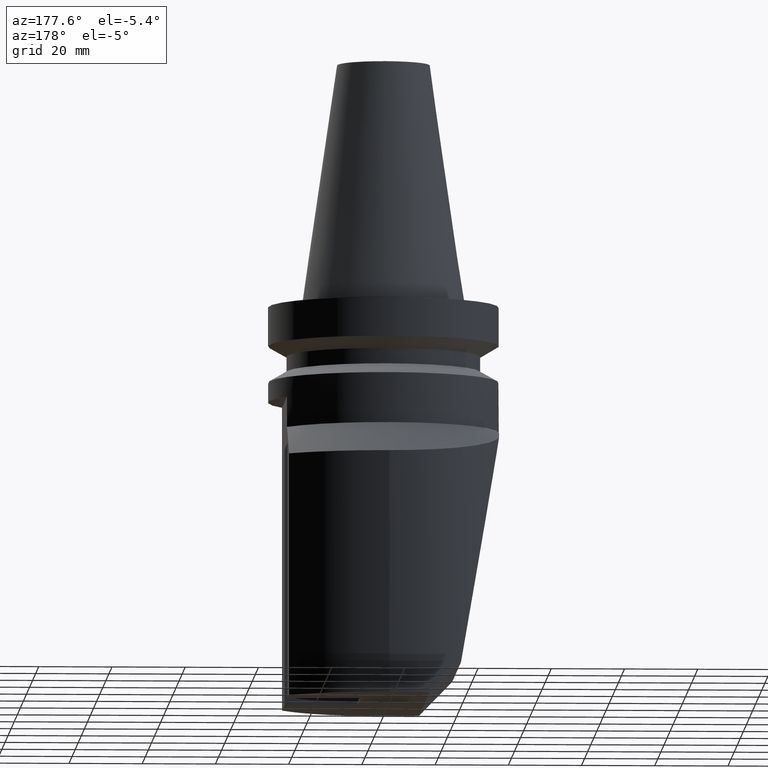
[diagram: clean part render]
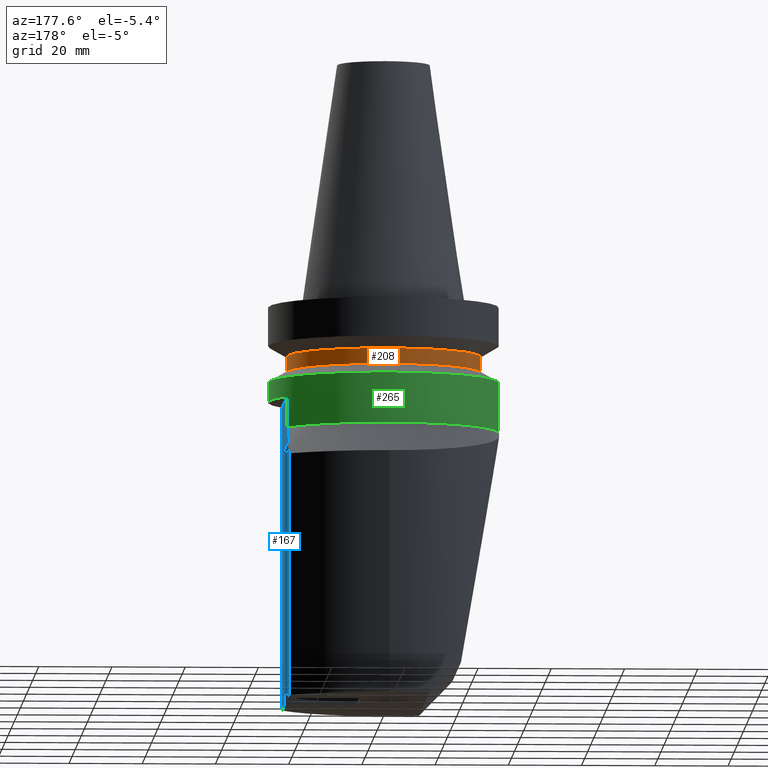
[diagram: same view with three faces highlighted in distinct colors, each labeled with its STEP entity id]
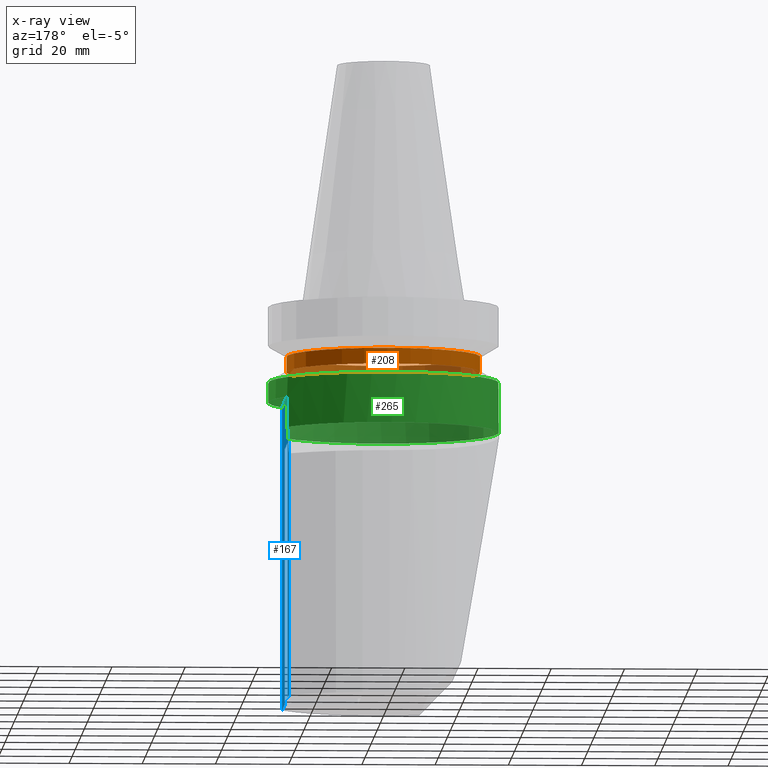
[diagram: x-ray of the same camera — body ghosted, the three highlighted faces saturated]
A machine part, auxiliary view with three faces highlighted in distinct colors.
The next image is the same camera in x-ray (body ghosted, the three faces saturated) — at least one of them is partly hidden behind the body in this view.
Their STEP definitions:

[orange] entity #208 — the highlighted cylindrical surface (bore or boss wall) has radius 26.5 mm, axis along (-0, 0, 1).
#140=EDGE_CURVE('Unnamed[1]',#352,#352,#353,.T.);
#194=EDGE_CURVE('Unnamed[1]',#425,#425,#426,.T.);
#208=ADVANCED_FACE('Unnamed[1]',(#442,#443),#444,.T.);
#352=VERTEX_POINT('',#637);
#353=CIRCLE('',#638,26.5000000000001);
#425=VERTEX_POINT('',#829);
#426=CIRCLE('',#830,26.5000000000001);
#442=FACE_BOUND('',#879,.T.);
#443=FACE_BOUND('',#880,.T.);
#444=CYLINDRICAL_SURFACE('',#881,26.5000000000001);
#637=CARTESIAN_POINT('',(8.87057683292944E-016,-26.5000000000001,-14.486751345948));
#638=AXIS2_PLACEMENT_3D('',#1067,#1068,#1069);
#829=CARTESIAN_POINT('',(1.14585600329165E-015,-26.5000000000001,-18.7132486540518));
#830=AXIS2_PLACEMENT_3D('',#1157,#1158,#1159);
#879=EDGE_LOOP('',(#1174));
#880=EDGE_LOOP('',(#1175));
#881=AXIS2_PLACEMENT_3D('',#1176,#1177,#1178);
#1067=CARTESIAN_POINT('',(8.87057683292945E-016,3.98382006214137E-015,-14.4867513459481));
#1068=DIRECTION('',(6.12323399573677E-017,-2.0159339262104E-016,-1.0));
#1069=DIRECTION('',(-7.51688241936162E-033,-1.0,2.0159339262104E-016));
#1157=CARTESIAN_POINT('',(1.14585600329165E-015,3.13178613089705E-015,-18.7132486540518));
#1158=DIRECTION('',(6.12323399573677E-017,-2.0159339262104E-016,-1.0));
#1159=DIRECTION('',(-7.51688241936162E-033,-1.0,2.0159339262104E-016));
#1174=ORIENTED_EDGE('',*,*,#194,.F.);
#1175=ORIENTED_EDGE('',*,*,#140,.T.);
#1176=CARTESIAN_POINT('',(1.0164568432923E-015,3.55780309651921E-015,-16.5999999999999));
#1177=DIRECTION('',(-6.12323399573677E-017,2.0159339262104E-016,1.0));
#1178=DIRECTION('',(-7.51688241936162E-033,-1.0,2.0159339262104E-016));

[blue] entity #167 — the highlighted planar face has unit normal (-1, -0, -0).
#101=EDGE_CURVE('Unnamed[1]',#291,#292,#293,.T.);
#128=EDGE_CURVE('Unnamed[1]',#300,#336,#337,.T.);
#134=EDGE_CURVE('Unnamed[1]',#300,#299,#345,.T.);
#136=EDGE_CURVE('Unnamed[1]',#347,#327,#348,.T.);
#167=ADVANCED_FACE('Unnamed[1]',(#388),#389,.F.);
#176=EDGE_CURVE('Unnamed[1]',#336,#401,#402,.T.);
#192=EDGE_CURVE('Unnamed[1]',#309,#292,#423,.T.);
#196=EDGE_CURVE('Unnamed[1]',#299,#375,#428,.T.);
#222=EDGE_CURVE('Unnamed[1]',#291,#464,#465,.T.);
#224=EDGE_CURVE('Unnamed[1]',#401,#430,#467,.T.);
#232=EDGE_CURVE('Unnamed[1]',#309,#375,#476,.T.);
#234=EDGE_CURVE('Unnamed[1]',#453,#430,#478,.T.);
#236=EDGE_CURVE('Unnamed[1]',#464,#347,#480,.T.);
#257=EDGE_CURVE('Unnamed[1]',#453,#327,#507,.T.);
#291=VERTEX_POINT('',#538);
#292=VERTEX_POINT('',#539);
#293=LINE('',#540,#541);
#299=VERTEX_POINT('',#549);
#300=VERTEX_POINT('',#550);
#309=VERTEX_POINT('',#561);
#327=VERTEX_POINT('',#589);
#336=VERTEX_POINT('',#601);
#337=LINE('',#602,#603);
#345=LINE('',#624,#625);
#347=VERTEX_POINT('',#628);
#348=LINE('',#629,#630);
#375=VERTEX_POINT('',#671);
#388=FACE_OUTER_BOUND('',#714,.T.);
#389=PLANE('',#715);
#401=VERTEX_POINT('',#785);
#402=(B_SPLINE_CURVE(3,(#787,#788,#789,#790,#791,#792,#793),.UNSPECIFIED.,.F.,.F.)B_SPLINE_CURVE_WITH_KNOTS((4,3,4),(0.0,10.5278552512868,16.0041699790328),.UNSPECIFIED.)RATIONAL_B_SPLINE_CURVE((1.0,1.00788251809051,1.01050813068556,1.00787683778514,1.00787683778514,1.00787683778514,1.00787683778514))BOUNDED_CURVE()REPRESENTATION_ITEM('')GEOMETRIC_REPRESENTATION_ITEM()CURVE());
#423=LINE('',#825,#826);
#428=LINE('',#833,#834);
#430=VERTEX_POINT('',#837);
#453=VERTEX_POINT('',#893);
#464=VERTEX_POINT('',#907);
#465=LINE('',#908,#909);
#467=(B_SPLINE_CURVE(3,(#913,#914,#915,#916,#917,#918,#919),.UNSPECIFIED.,.F.,.F.)B_SPLINE_CURVE_WITH_KNOTS((4,3,4),(0.0,10.5278552512868,16.0041699790328),.UNSPECIFIED.)RATIONAL_B_SPLINE_CURVE((1.0,1.00788251809051,1.01050813068556,1.00787683778514,1.00787683778514,1.00787683778514,1.00787683778514))BOUNDED_CURVE()REPRESENTATION_ITEM('')GEOMETRIC_REPRESENTATION_ITEM()CURVE());
#476=LINE('',#939,#940);
#478=LINE('',#943,#944);
#480=LINE('',#947,#948);
#507=LINE('',#992,#993);
#538=CARTESIAN_POINT('',(27.0000000000001,-0.0034281572378115,-110.0));
#539=CARTESIAN_POINT('',(27.0000000000002,-16.2284088968249,-109.999999999997));
#540=CARTESIAN_POINT('',(27.0000000000001,-7.11272217673018,-109.999999999999));
#541=VECTOR('',#1013,1.0);
#549=CARTESIAN_POINT('',(27.0000000000001,-16.2249807395879,-26.9999999999999));
#550=CARTESIAN_POINT('',(27.0,16.2249807395881,-26.9999999999998));
#561=CARTESIAN_POINT('',(26.9999999999996,-16.2284088968269,-35.3017659080035));
#589=CARTESIAN_POINT('',(26.9999999999999,19.9965718427622,-110.000000000002));
#601=CARTESIAN_POINT('',(27.0,16.2249807395876,-35.3000000000013));
#602=CARTESIAN_POINT('',(27.0,16.2249807395879,-28.4500000000006));
#603=VECTOR('',#1062,1.0);
#624=CARTESIAN_POINT('',(27.0,2.88727782326311,-26.9999999999998));
#625=VECTOR('',#1064,1.0);
#628=CARTESIAN_POINT('',(26.9999999999999,19.9965718427622,-39.9999999999999));
#629=CARTESIAN_POINT('',(26.9999999999999,19.9965718427622,-272.996571842762));
#630=VECTOR('',#1065,1.0);
#671=CARTESIAN_POINT('',(27.0000000000001,-16.2249807395873,-35.3000000000013));
#714=EDGE_LOOP('',(#1105,#1106,#1107,#1108,#1109,#1110,#1111,#1112,#1113,#1114,#1115,#1116,#1117));
#715=AXIS2_PLACEMENT_3D('',#1118,#1119,#1120);
#785=CARTESIAN_POINT('',(26.9999999999999,21.8441877516248,-38.5299372088164));
#787=CARTESIAN_POINT('',(27.0,16.2249807395876,-35.3000000000013));
#788=CARTESIAN_POINT('',(27.0,18.8531391872342,-36.6537085775775));
#789=CARTESIAN_POINT('',(26.9999999999999,21.6689430550411,-38.3469932147022));
#790=CARTESIAN_POINT('',(26.9999999999999,24.7149860313792,-40.40369564035));
#791=CARTESIAN_POINT('',(26.9999999999999,26.3035944812953,-41.4763314756705));
#792=CARTESIAN_POINT('',(26.9999999999998,27.9079574070795,-42.6160483346389));
#793=CARTESIAN_POINT('',(26.9999999999998,29.5092809695102,-43.7974707117538));
#825=CARTESIAN_POINT('',(27.0000000000001,-16.2284088968249,-76.85));
#826=VECTOR('',#1156,1.0);
#833=CARTESIAN_POINT('',(27.0000000000001,-16.2249807395875,-76.85));
#834=VECTOR('',#1160,1.0);
#837=CARTESIAN_POINT('',(26.9999999999998,29.5092809695102,-43.7974707117538));
#893=CARTESIAN_POINT('',(26.9999999999998,29.5092809695102,-110.0));
#907=CARTESIAN_POINT('',(27.0000000000001,-0.00342815723782013,-39.9999999999999));
#908=CARTESIAN_POINT('',(27.0000000000001,-0.00342815723779147,-272.996571842762));
#909=VECTOR('',#1203,1.0);
#913=CARTESIAN_POINT('',(27.0,16.2249807395876,-35.3000000000013));
#914=CARTESIAN_POINT('',(27.0,18.8531391872342,-36.6537085775775));
#915=CARTESIAN_POINT('',(26.9999999999999,21.6689430550411,-38.3469932147022));
#916=CARTESIAN_POINT('',(26.9999999999999,24.7149860313792,-40.40369564035));
#917=CARTESIAN_POINT('',(26.9999999999999,26.3035944812953,-41.4763314756705));
#918=CARTESIAN_POINT('',(26.9999999999998,27.9079574070795,-42.6160483346389));
#919=CARTESIAN_POINT('',(26.9999999999998,29.5092809695102,-43.7974707117538));
#939=CARTESIAN_POINT('',(27.0000000000001,-16.2269952441868,-35.301037862504));
#940=VECTOR('',#1211,1.0);
#943=CARTESIAN_POINT('',(26.9999999999998,29.5092809695102,-272.996571842762));
#944=VECTOR('',#1212,1.0);
#947=CARTESIAN_POINT('',(27.0,8.04161003166451,-39.9999999999989));
#948=VECTOR('',#1213,1.0);
#992=CARTESIAN_POINT('',(27.0000000000001,-7.11272217673018,-109.999999999999));
#993=VECTOR('',#1258,1.0);
#1013=DIRECTION('',(7.50292069739194E-015,-1.0,7.73266935179359E-014));
#1062=DIRECTION('',(6.12323399573677E-017,-2.0159339262104E-016,-1.0));
#1064=DIRECTION('',(7.50292069739195E-015,-1.0,-3.28448495793784E-015));
#1065=DIRECTION('',(6.12323399573677E-017,1.22464679914735E-016,-1.0));
#1105=ORIENTED_EDGE('',*,*,#134,.T.);
#1106=ORIENTED_EDGE('',*,*,#196,.T.);
#1107=ORIENTED_EDGE('',*,*,#232,.F.);
#1108=ORIENTED_EDGE('',*,*,#192,.T.);
#1109=ORIENTED_EDGE('',*,*,#101,.F.);
#1110=ORIENTED_EDGE('',*,*,#222,.T.);
#1111=ORIENTED_EDGE('',*,*,#236,.T.);
#1112=ORIENTED_EDGE('',*,*,#136,.T.);
#1113=ORIENTED_EDGE('',*,*,#257,.F.);
#1114=ORIENTED_EDGE('',*,*,#234,.T.);
#1115=ORIENTED_EDGE('',*,*,#224,.F.);
#1116=ORIENTED_EDGE('',*,*,#176,.F.);
#1117=ORIENTED_EDGE('',*,*,#128,.F.);
#1118=CARTESIAN_POINT('',(27.0,5.77455564652693,-272.996571842762));
#1119=DIRECTION('',(-1.0,-7.50292069739195E-015,-6.12323399573686E-017));
#1120=DIRECTION('',(-7.50292069739195E-015,1.0,0.0));
#1156=DIRECTION('',(6.12323399573676E-017,1.22464679914735E-016,-1.0));
#1160=DIRECTION('',(6.12323399573677E-017,-2.0159339262104E-016,-1.0));
#1203=DIRECTION('',(-6.12323399573677E-017,-1.22464679914735E-016,1.0));
#1211=DIRECTION('',(3.94693828708642E-013,0.888983886922819,0.457938477081361));
#1212=DIRECTION('',(-6.12323399573676E-017,-1.22464679914735E-016,1.0));
#1213=DIRECTION('',(-7.50292069739195E-015,1.0,1.22464679914735E-016));
#1258=DIRECTION('',(7.50292069739194E-015,-1.0,7.73266935179359E-014));

[green] entity #265 — the highlighted cylindrical surface (bore or boss wall) has radius 31.5 mm, axis along (-0, 0, 1).
#106=EDGE_CURVE('Unnamed[1]',#299,#300,#301,.T.);
#113=EDGE_CURVE('Unnamed[1]',#312,#313,#314,.T.);
#128=EDGE_CURVE('Unnamed[1]',#300,#336,#337,.T.);
#156=EDGE_CURVE('Unnamed[1]',#312,#336,#373,.T.);
#158=EDGE_CURVE('Unnamed[1]',#375,#313,#376,.T.);
#174=EDGE_CURVE('Unnamed[1]',#398,#398,#399,.T.);
#196=EDGE_CURVE('Unnamed[1]',#299,#375,#428,.T.);
#265=ADVANCED_FACE('Unnamed[1]',(#516,#517),#518,.T.);
#299=VERTEX_POINT('',#549);
#300=VERTEX_POINT('',#550);
#301=CIRCLE('',#551,31.5000000000001);
#312=VERTEX_POINT('',#570);
#313=VERTEX_POINT('',#571);
#314=ELLIPSE('',#572,181.401270219024,31.4999999999999);
#336=VERTEX_POINT('',#601);
#337=LINE('',#602,#603);
#373=CIRCLE('',#668,31.4999999999998);
#375=VERTEX_POINT('',#671);
#376=CIRCLE('',#672,31.4999999999998);
#398=VERTEX_POINT('',#781);
#399=CIRCLE('',#782,31.5000000000001);
#428=LINE('',#833,#834);
#516=FACE_BOUND('',#1005,.T.);
#517=FACE_BOUND('',#1006,.T.);
#518=CYLINDRICAL_SURFACE('',#1007,31.4999999999999);
#549=CARTESIAN_POINT('',(27.0000000000001,-16.2249807395879,-26.9999999999999));
#550=CARTESIAN_POINT('',(27.0,16.2249807395881,-26.9999999999998));
#551=AXIS2_PLACEMENT_3D('',#1019,#1020,#1021);
#570=CARTESIAN_POINT('',(-31.4471019057867,1.82476895169037,-35.3000000000013));
#571=CARTESIAN_POINT('',(-31.4471019057867,-1.82476895169037,-35.3000000000013));
#572=AXIS2_PLACEMENT_3D('',#1028,#1029,#1030);
#601=CARTESIAN_POINT('',(27.0,16.2249807395876,-35.3000000000013));
#602=CARTESIAN_POINT('',(27.0,16.2249807395879,-28.4500000000006));
#603=VECTOR('',#1062,1.0);
#668=AXIS2_PLACEMENT_3D('',#1094,#1095,#1096);
#671=CARTESIAN_POINT('',(27.0000000000001,-16.2249807395873,-35.3000000000013));
#672=AXIS2_PLACEMENT_3D('',#1097,#1098,#1099);
#781=CARTESIAN_POINT('',(27.0000000000001,-16.2249807395879,-21.5999999999999));
#782=AXIS2_PLACEMENT_3D('',#1127,#1128,#1129);
#833=CARTESIAN_POINT('',(27.0000000000001,-16.2249807395875,-76.85));
#834=VECTOR('',#1160,1.0);
#1005=EDGE_LOOP('',(#1269,#1270,#1271,#1272,#1273,#1274));
#1006=EDGE_LOOP('',(#1275));
#1007=AXIS2_PLACEMENT_3D('',#1276,#1277,#1278);
#1019=CARTESIAN_POINT('',(-4.84153729601279E-014,2.03134045274165E-014,-26.9999999999999));
#1020=DIRECTION('',(-6.12323399573677E-017,2.0159339262104E-016,1.0));
#1021=DIRECTION('',(-7.51688241936162E-033,-1.0,2.0159339262104E-016));
#1028=CARTESIAN_POINT('',(1.30820063742531E-014,-3.61652430173003E-014,-213.645377317954));
#1029=DIRECTION('',(0.984807753012208,-2.12657684957577E-017,0.173648177666931));
#1030=DIRECTION('',(-0.173648177666931,1.98530736009235E-016,0.984807753012208));
#1062=DIRECTION('',(6.12323399573677E-017,-2.0159339262104E-016,-1.0));
#1094=CARTESIAN_POINT('',(2.16150160049516E-015,-2.11993345494519E-016,-35.3000000000013));
#1095=DIRECTION('',(6.12323399573677E-017,-2.0159339262104E-016,-1.0));
#1096=DIRECTION('',(-7.51688241936162E-033,-1.0,2.0159339262104E-016));
#1097=CARTESIAN_POINT('',(2.16150160049516E-015,-2.11993345494519E-016,-35.3000000000013));
#1098=DIRECTION('',(6.12323399573677E-017,-2.0159339262104E-016,-1.0));
#1099=DIRECTION('',(-7.51688241936162E-033,-1.0,2.0159339262104E-016));
#1127=CARTESIAN_POINT('',(1.32261854307913E-015,2.54983613341402E-015,-21.5999999999999));
#1128=DIRECTION('',(6.12323399573677E-017,-2.0159339262104E-016,-1.0));
#1129=DIRECTION('',(-7.51688241936162E-033,-1.0,2.0159339262104E-016));
#1160=DIRECTION('',(6.12323399573677E-017,-2.0159339262104E-016,-1.0));
#1269=ORIENTED_EDGE('',*,*,#106,.T.);
#1270=ORIENTED_EDGE('',*,*,#128,.T.);
#1271=ORIENTED_EDGE('',*,*,#156,.F.);
#1272=ORIENTED_EDGE('',*,*,#113,.T.);
#1273=ORIENTED_EDGE('',*,*,#158,.F.);
#1274=ORIENTED_EDGE('',*,*,#196,.F.);
#1275=ORIENTED_EDGE('',*,*,#174,.T.);
#1276=CARTESIAN_POINT('',(1.74206007178715E-015,1.16892139395975E-015,-28.4500000000006));
#1277=DIRECTION('',(-6.12323399573677E-017,2.0159339262104E-016,1.0));
#1278=DIRECTION('',(-7.51688241936162E-033,-1.0,2.0159339262104E-016));